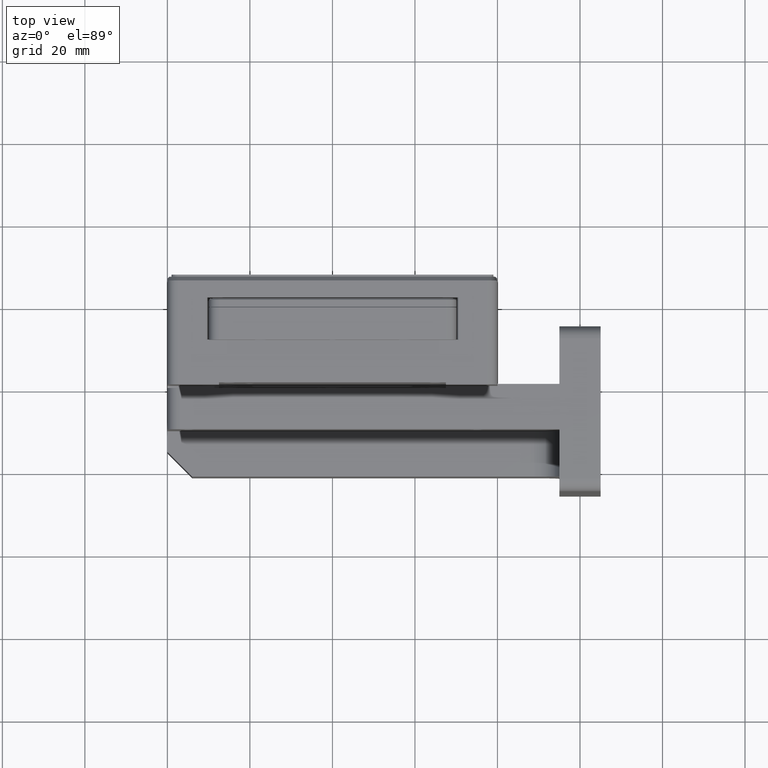
[diagram: clean part render]
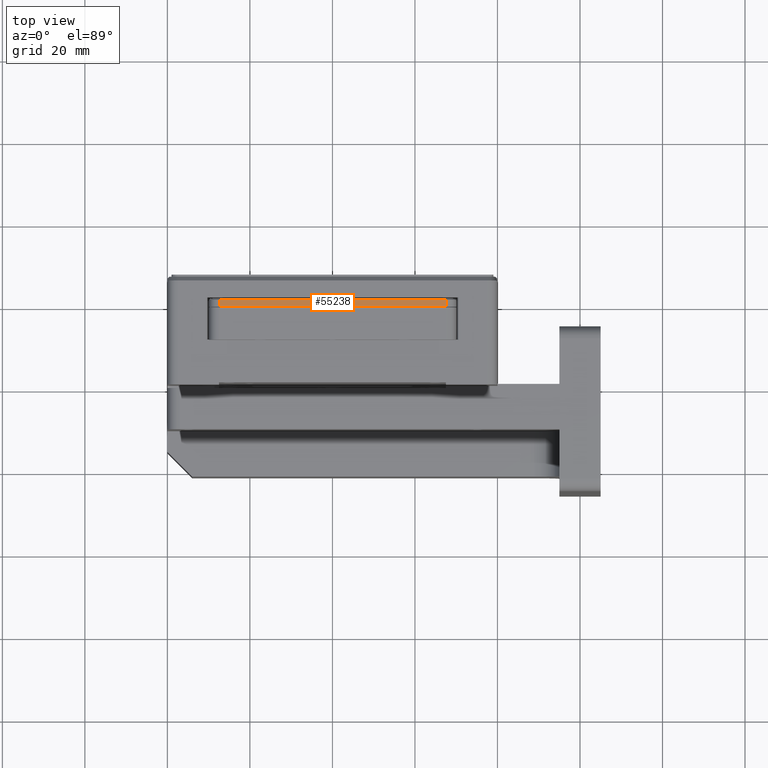
[diagram: same view with one face highlighted and labeled with its STEP entity id]
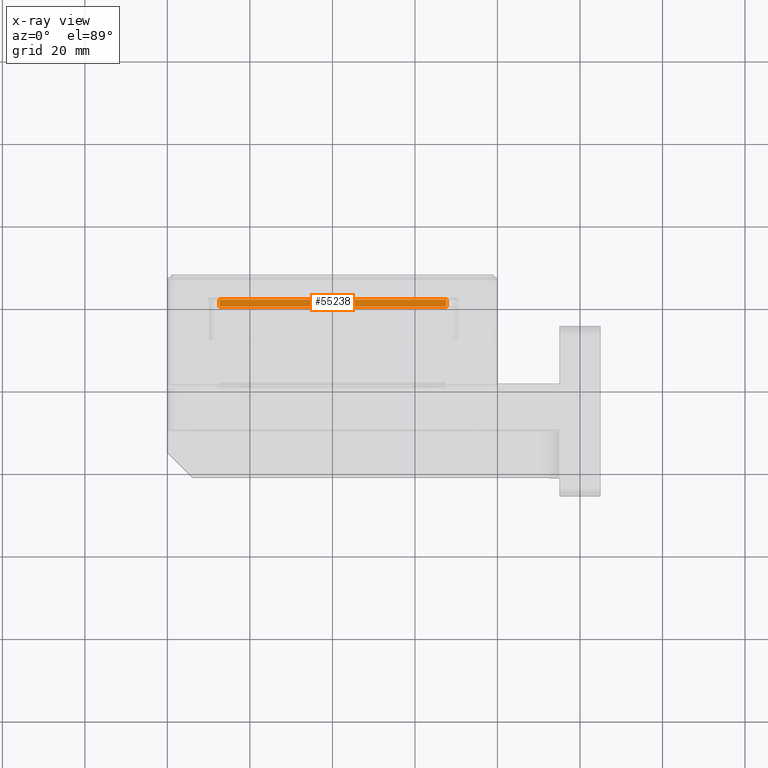
[diagram: x-ray of the same camera — body ghosted, the highlighted face saturated]
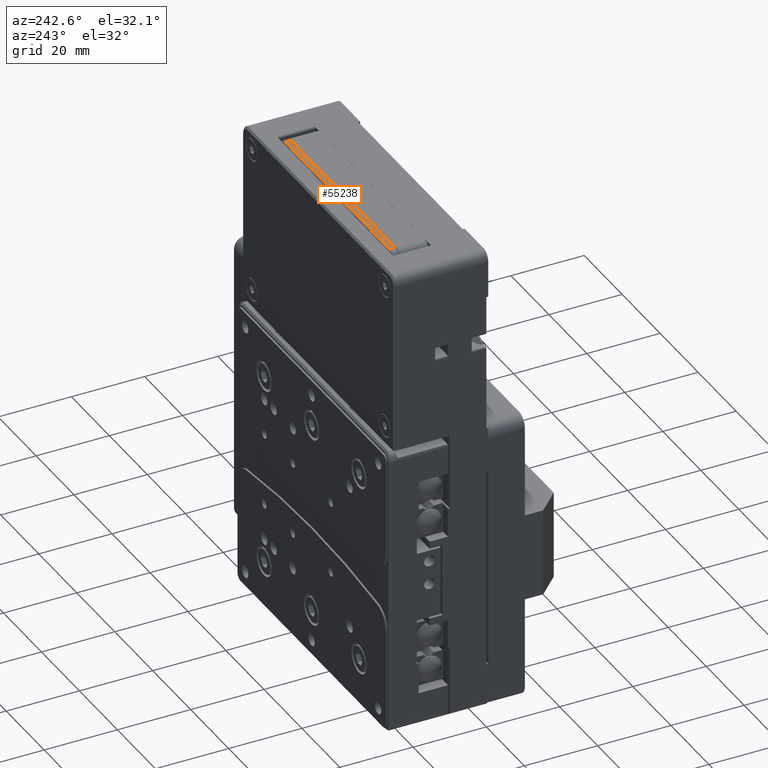
[diagram: same view with one face highlighted and labeled with its STEP entity id]
A machine part, top view. The second image highlights one B-rep face of the part: STEP entity #55238.
The next image is the same camera in x-ray: the body ghosted, the highlighted face saturated — about 0% of this face is hidden behind the body in this view.
A second angle (auxiliary view) of the same face is appended — the face is thin or edge-on in the first view.
In plain terms, the highlighted planar face has unit normal (0, 0, 1).
Its self-contained STEP definition (entity closure, byte-faithful):
#684 = LINE ( 'NONE', #10534, #45507 ) ;
#1483 = DIRECTION ( 'NONE',  ( 0.000000000000000000, -1.000000000000000000, 0.000000000000000000 ) ) ;
#2574 = DIRECTION ( 'NONE',  ( 1.000000000000000000, 0.000000000000000000, -0.000000000000000000 ) ) ;
#6912 = CARTESIAN_POINT ( 'NONE',  ( 27.59097680442682687, 30.58312785792463018, 90.04261516356700668 ) ) ;
#10534 = CARTESIAN_POINT ( 'NONE',  ( -27.40902319557319444, 20.34986785792462882, 90.04261516356700668 ) ) ;
#13703 = EDGE_CURVE ( 'NONE', #38998, #20363, #17235, .T. ) ;
#14393 = VECTOR ( 'NONE', #2574, 1000.000000000000000 ) ;
#15756 = VECTOR ( 'NONE', #40222, 1000.000000000000000 ) ;
#16228 = EDGE_CURVE ( 'NONE', #43578, #19943, #19365, .T. ) ;
#17235 = LINE ( 'NONE', #30620, #15756 ) ;
#19365 = LINE ( 'NONE', #47195, #14393 ) ;
#19791 = DIRECTION ( 'NONE',  ( 0.000000000000000000, -1.000000000000000000, -0.000000000000000000 ) ) ;
#19943 = VERTEX_POINT ( 'NONE', #37050 ) ;
#20363 = VERTEX_POINT ( 'NONE', #36622 ) ;
#22098 = CARTESIAN_POINT ( 'NONE',  ( -27.40902319557318734, 18.34986785792462527, 90.04261516356700668 ) ) ;
#22859 = VECTOR ( 'NONE', #1483, 1000.000000000000000 ) ;
#26568 = DIRECTION ( 'NONE',  ( 1.000000000000000000, 0.000000000000000000, -0.000000000000000000 ) ) ;
#30620 = CARTESIAN_POINT ( 'NONE',  ( -29.90902319557318023, 18.34986785792462527, 90.04261516356700668 ) ) ;
#34317 = AXIS2_PLACEMENT_3D ( 'NONE', #46044, #42193, #26568 ) ;
#36622 = CARTESIAN_POINT ( 'NONE',  ( 27.59097680442682332, 18.34986785792462527, 90.04261516356700668 ) ) ;
#36694 = CARTESIAN_POINT ( 'NONE',  ( -27.40902319557320510, 20.04986785925112969, 90.04261516258706877 ) ) ;
#37050 = CARTESIAN_POINT ( 'NONE',  ( 27.59097680442682687, 20.04986785840923247, 90.04261516310590707 ) ) ;
#37365 = EDGE_CURVE ( 'NONE', #19943, #20363, #40696, .T. ) ;
#37645 = ORIENTED_EDGE ( 'NONE', *, *, #16228, .F. ) ;
#38174 = ORIENTED_EDGE ( 'NONE', *, *, #41826, .T. ) ;
#38998 = VERTEX_POINT ( 'NONE', #22098 ) ;
#40222 = DIRECTION ( 'NONE',  ( 1.000000000000000000, 0.000000000000000000, -0.000000000000000000 ) ) ;
#40696 = LINE ( 'NONE', #6912, #22859 ) ;
#41581 = FACE_OUTER_BOUND ( 'NONE', #50974, .T. ) ;
#41826 = EDGE_CURVE ( 'NONE', #43578, #38998, #684, .T. ) ;
#42193 = DIRECTION ( 'NONE',  ( 0.000000000000000000, 0.000000000000000000, 1.000000000000000000 ) ) ;
#43578 = VERTEX_POINT ( 'NONE', #36694 ) ;
#45507 = VECTOR ( 'NONE', #19791, 1000.000000000000000 ) ;
#46044 = CARTESIAN_POINT ( 'NONE',  ( -29.90902319557318023, 20.34986785792462882, 90.04261516356700668 ) ) ;
#46694 = PLANE ( 'NONE',  #34317 ) ;
#47195 = CARTESIAN_POINT ( 'NONE',  ( 0.09097680442681817248, 20.04986785930970328, 90.04261516218194572 ) ) ;
#50974 = EDGE_LOOP ( 'NONE', ( #58880, #37645, #38174, #61836 ) ) ;
#55238 = ADVANCED_FACE ( 'NONE', ( #41581 ), #46694, .T. ) ;
#58880 = ORIENTED_EDGE ( 'NONE', *, *, #37365, .F. ) ;
#61836 = ORIENTED_EDGE ( 'NONE', *, *, #13703, .T. ) ;